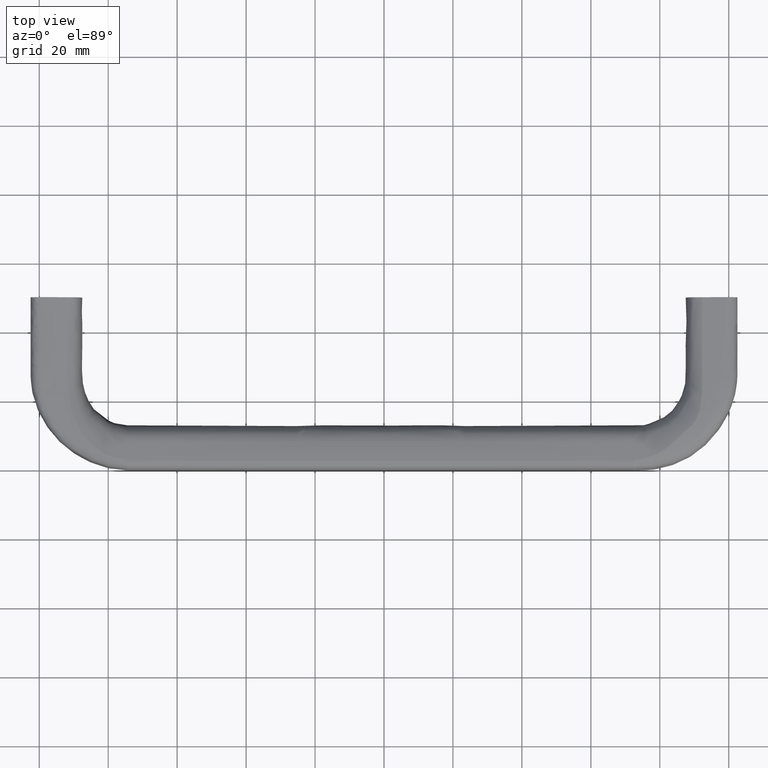
[diagram: clean part render]
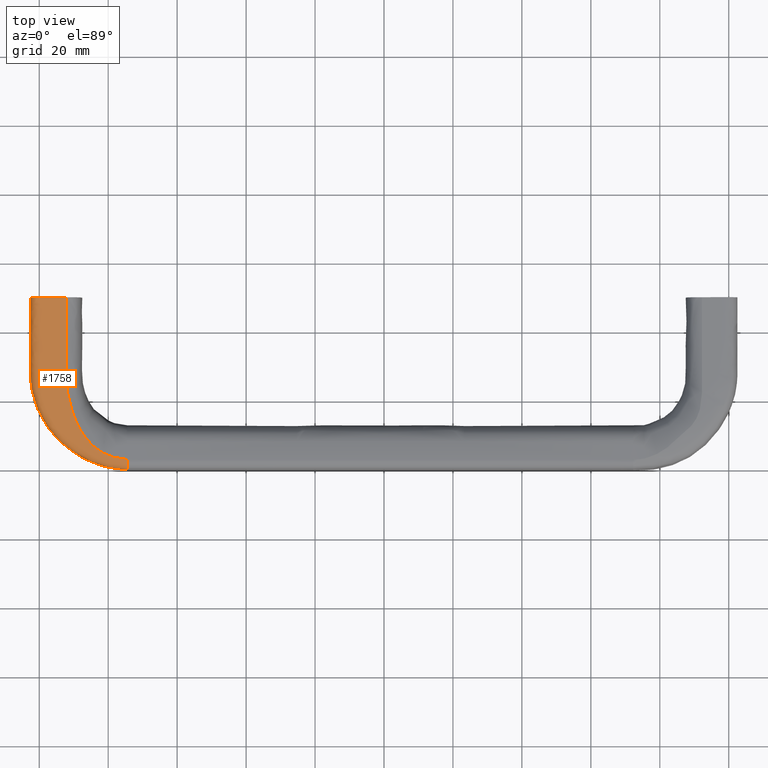
[diagram: same view with one face highlighted and labeled with its STEP entity id]
A machine part, top view. The second image highlights one B-rep face of the part: STEP entity #1758.
In plain terms, the highlighted face is a freeform B-spline surface patch.
Its self-contained STEP definition (entity closure, byte-faithful):
#463=CARTESIAN_POINT('',(-74.455555555555705,-3.932540E-010,5.477225575051659));
#464=VERTEX_POINT('',#463);
#472=CARTESIAN_POINT('',(-102.500000000000000,50.000000000000703,5.477225575051670));
#473=VERTEX_POINT('',#472);
#474=CARTESIAN_POINT('',(-74.455555555555705,-3.932540E-010,5.477225575051659));
#475=CARTESIAN_POINT('',(-89.358226491300201,0.522738654041826,5.477225575051659));
#476=CARTESIAN_POINT('',(-102.499999999827390,12.561085448286059,5.477225575051659));
#477=CARTESIAN_POINT('',(-102.499999999828200,27.999999999998700,5.477225575051659));
#478=CARTESIAN_POINT('',(-102.499999999828200,35.333333333331993,5.477225575051659));
#479=CARTESIAN_POINT('',(-102.500000000000000,42.666666666667403,5.477225575051659));
#480=CARTESIAN_POINT('',(-102.500000000000000,50.000000000000703,5.477225575051659));
#481=B_SPLINE_CURVE_WITH_KNOTS('',3,(#474,#475,#476,#477,#478,#479,#480),.UNSPECIFIED.,.F.,.U.,(4,3,4),(4.0,5.0,6.0),.UNSPECIFIED.);
#482=EDGE_CURVE('',#464,#473,#481,.T.);
#1171=CARTESIAN_POINT('',(-74.455555555555705,2.934070290343550,10.962028225664501));
#1172=VERTEX_POINT('',#1171);
#1195=CARTESIAN_POINT('',(-92.218183268673201,50.000000000000703,10.321889405628880));
#1196=VERTEX_POINT('',#1195);
#1218=CARTESIAN_POINT('',(-74.455555555555705,2.934070290343550,10.962028225664501));
#1219=CARTESIAN_POINT('',(-87.819708027216691,3.456808944778620,10.962028225664501));
#1220=CARTESIAN_POINT('',(-92.218183269763699,17.952491691506449,10.321889405738920));
#1221=CARTESIAN_POINT('',(-92.218183269764396,27.999999999998700,10.321889405738920));
#1222=CARTESIAN_POINT('',(-92.218183269764396,35.333333333332050,10.321889405738920));
#1223=CARTESIAN_POINT('',(-92.218183268673201,42.666666666667403,10.321889405628880));
#1224=CARTESIAN_POINT('',(-92.218183268673201,50.000000000000703,10.321889405628880));
#1225=B_SPLINE_CURVE_WITH_KNOTS('',3,(#1218,#1219,#1220,#1221,#1222,#1223,#1224),.UNSPECIFIED.,.F.,.U.,(4,3,4),(4.0,5.0,6.0),.UNSPECIFIED.);
#1226=EDGE_CURVE('',#1172,#1196,#1225,.T.);
#1580=CARTESIAN_POINT('',(-74.008475437476235,-0.015682159675788,5.438715734304164));
#1581=CARTESIAN_POINT('',(-74.008475437476235,-0.015682159675788,5.958411250103641));
#1582=CARTESIAN_POINT('',(-74.008475437476235,-0.015682159675788,6.478106765903122));
#1583=CARTESIAN_POINT('',(-74.008475437476235,-0.015682159675788,7.350395461640460));
#1584=CARTESIAN_POINT('',(-74.008475437478054,-0.015682159560074,7.702988641565670));
#1585=CARTESIAN_POINT('',(-74.008511003309181,-0.013421269115753,8.203459389458251));
#1586=CARTESIAN_POINT('',(-74.008280364227019,-0.028082804649858,8.557750466270759));
#1587=CARTESIAN_POINT('',(-74.008850443595165,0.008156668882874,8.906146889645004));
#1588=CARTESIAN_POINT('',(-74.011609216588283,0.183529584404756,9.609623150905080));
#1589=CARTESIAN_POINT('',(-74.016082100385930,0.467867104867830,10.071508046168420));
#1590=CARTESIAN_POINT('',(-74.030895870623254,1.409566216346828,10.861703768398300));
#1591=CARTESIAN_POINT('',(-74.041787538991088,2.101940558610443,11.065528569980080));
#1592=CARTESIAN_POINT('',(-74.054729788647123,2.924668655938685,10.963939000205180));
#1593=CARTESIAN_POINT('',(-74.056877673884031,3.061207942478890,10.935807614377429));
#1594=CARTESIAN_POINT('',(-74.059028599749411,3.197940519251385,10.912741469195510));
#1595=CARTESIAN_POINT('',(-74.157502143502725,-0.010454773248277,5.438715734304164));
#1596=CARTESIAN_POINT('',(-74.157502143502725,-0.010454773248277,5.958411250103641));
#1597=CARTESIAN_POINT('',(-74.157502143502725,-0.010454773248277,6.478106765903122));
#1598=CARTESIAN_POINT('',(-74.157502143502725,-0.010454773248277,7.350395461640460));
#1599=CARTESIAN_POINT('',(-74.157502143503933,-0.010454773132562,7.702988641565670));
#1600=CARTESIAN_POINT('',(-74.157525854058022,-0.008193882688242,8.203459389458251));
#1601=CARTESIAN_POINT('',(-74.157372094669924,-0.022855418222347,8.557750466270759));
#1602=CARTESIAN_POINT('',(-74.157752147582016,0.013384055310386,8.906146889645004));
#1603=CARTESIAN_POINT('',(-74.159591329577424,0.188756970832267,9.609623150905080));
#1604=CARTESIAN_POINT('',(-74.162573252109183,0.473094491295341,10.071508046168420));
#1605=CARTESIAN_POINT('',(-74.172449098934067,1.414793602774339,10.861703768398300));
#1606=CARTESIAN_POINT('',(-74.179710211179298,2.107167945037955,11.065528569980080));
#1607=CARTESIAN_POINT('',(-74.188338377616631,2.929896042366196,10.963939000205180));
#1608=CARTESIAN_POINT('',(-74.189770301107941,3.066435328906401,10.935807614377429));
#1609=CARTESIAN_POINT('',(-74.191204251684837,3.203167905678896,10.912741469195510));
#1610=CARTESIAN_POINT('',(-74.306528849529215,-0.005227386820765,5.438715734304164));
#1611=CARTESIAN_POINT('',(-74.306528849529201,-0.005227386820765,5.958411250103641));
#1612=CARTESIAN_POINT('',(-74.306528849529215,-0.005227386820765,6.478106765903122));
#1613=CARTESIAN_POINT('',(-74.306528849529215,-0.005227386820765,7.350395461640460));
#1614=CARTESIAN_POINT('',(-74.306528849529826,-0.005227386705051,7.702988641565670));
#1615=CARTESIAN_POINT('',(-74.306540704806864,-0.002966496260730,8.203459389458251));
#1616=CARTESIAN_POINT('',(-74.306463825112829,-0.017628031794835,8.557750466270759));
#1617=CARTESIAN_POINT('',(-74.306653851568853,0.018611441737897,8.906146889645004));
#1618=CARTESIAN_POINT('',(-74.307573442566564,0.193984357259779,9.609623150905080));
#1619=CARTESIAN_POINT('',(-74.309064403832451,0.478321877722853,10.071508046168420));
#1620=CARTESIAN_POINT('',(-74.314002327244893,1.420020989201851,10.861703768398300));
#1621=CARTESIAN_POINT('',(-74.317632883367494,2.112395331465466,11.065528569980080));
#1622=CARTESIAN_POINT('',(-74.321946966586182,2.935123428793707,10.963939000205180));
#1623=CARTESIAN_POINT('',(-74.322662928331837,3.071662715333912,10.935807614377429));
#1624=CARTESIAN_POINT('',(-74.323379903620278,3.208395292106408,10.912741469195510));
#1625=CARTESIAN_POINT('',(-89.358226491300201,0.522738654041826,5.438715734304164));
#1626=CARTESIAN_POINT('',(-89.358226491300201,0.522738654041826,5.958411250103641));
#1627=CARTESIAN_POINT('',(-89.358226491300201,0.522738654041826,6.478106765903122));
#1628=CARTESIAN_POINT('',(-89.358226491300201,0.522738654041826,7.350395461640460));
#1629=CARTESIAN_POINT('',(-89.358226491239506,0.522738654157540,7.702988641565670));
#1630=CARTESIAN_POINT('',(-89.357040963508723,0.524999544601861,8.203459389458251));
#1631=CARTESIAN_POINT('',(-89.364728933085360,0.510338009067757,8.557750466270759));
#1632=CARTESIAN_POINT('',(-89.345726287056507,0.546577482600489,8.906146889645004));
#1633=CARTESIAN_POINT('',(-89.253767185230515,0.721950398122370,9.609623150905080));
#1634=CARTESIAN_POINT('',(-89.104671055309794,1.006287918585442,10.071508046168420));
#1635=CARTESIAN_POINT('',(-88.610878703028504,1.947987030064435,10.861703768398300));
#1636=CARTESIAN_POINT('',(-88.247823082652488,2.640361372328058,11.065528569980080));
#1637=CARTESIAN_POINT('',(-87.816414751142545,3.463089469656291,10.963939000205180));
#1638=CARTESIAN_POINT('',(-87.744818574977813,3.599628756196481,10.935807614377429));
#1639=CARTESIAN_POINT('',(-87.673121044529879,3.736361332968964,10.912741469195510));
#1640=CARTESIAN_POINT('',(-102.499999999827390,12.561085448286059,5.400671356378402));
#1641=CARTESIAN_POINT('',(-102.499999999827390,12.561085448286059,6.433780904166188));
#1642=CARTESIAN_POINT('',(-102.499999999827390,12.561085448286059,7.466890451953974));
#1643=CARTESIAN_POINT('',(-102.499999999827390,12.561085448286100,9.200924617338838));
#1644=CARTESIAN_POINT('',(-102.205751354328000,12.715378607370161,9.869655533687041));
#1645=CARTESIAN_POINT('',(-101.471856008388600,13.100206313781101,10.542146717723311));
#1646=CARTESIAN_POINT('',(-100.881531777884900,13.409750611779989,10.915399608141859));
#1647=CARTESIAN_POINT('',(-100.187000400662800,13.773937301892801,11.025910008607420));
#1648=CARTESIAN_POINT('',(-98.723575700613608,14.541303349301360,10.897876937552860));
#1649=CARTESIAN_POINT('',(-97.665040757786997,15.096360111083049,10.805267130193160));
#1650=CARTESIAN_POINT('',(-95.230575743451098,16.372903957543048,10.592279039838299));
#1651=CARTESIAN_POINT('',(-93.854579605477170,17.094425685043610,10.472127108807721));
#1652=CARTESIAN_POINT('',(-92.204290564440328,17.959776514819509,10.325867422205519));
#1653=CARTESIAN_POINT('',(-91.935827208664492,18.100548817069662,10.280253803922010));
#1654=CARTESIAN_POINT('',(-91.664520717870587,18.242811954674039,10.244263158122740));
#1655=CARTESIAN_POINT('',(-102.499999999828200,27.999999999998700,5.400671356378402));
#1656=CARTESIAN_POINT('',(-102.499999999828200,27.999999999998689,6.433780904166188));
#1657=CARTESIAN_POINT('',(-102.499999999828200,27.999999999998700,7.466890451953974));
#1658=CARTESIAN_POINT('',(-102.499999999828200,27.999999999998700,9.200924617338838));
#1659=CARTESIAN_POINT('',(-102.205751354328600,27.999999999998700,9.869655533687041));
#1660=CARTESIAN_POINT('',(-101.471856008389200,27.999999999998700,10.542146717723311));
#1661=CARTESIAN_POINT('',(-100.881531777885800,27.999999999998700,10.915399608141859));
#1662=CARTESIAN_POINT('',(-100.187000400663610,27.999999999998700,11.025910008607420));
#1663=CARTESIAN_POINT('',(-98.723575700614290,27.999999999998700,10.897876937552860));
#1664=CARTESIAN_POINT('',(-97.665040757787708,27.999999999998700,10.805267130193160));
#1665=CARTESIAN_POINT('',(-95.230575743451894,27.999999999998700,10.592279039838299));
#1666=CARTESIAN_POINT('',(-93.854579605477852,27.999999999998700,10.472127108807721));
#1667=CARTESIAN_POINT('',(-92.204290564441052,27.999999999998700,10.325867422205519));
#1668=CARTESIAN_POINT('',(-91.935827208665145,27.999999999998700,10.280253803922010));
#1669=CARTESIAN_POINT('',(-91.664520717871198,27.999999999998700,10.244263158122740));
#1670=CARTESIAN_POINT('',(-102.499999999828200,35.406666665026201,5.400671356378402));
#1671=CARTESIAN_POINT('',(-102.499999999828200,35.406666665026201,6.433780904166188));
#1672=CARTESIAN_POINT('',(-102.499999999828200,35.406666665026201,7.466890451953974));
#1673=CARTESIAN_POINT('',(-102.499999999828010,35.406666665026201,9.200924617338838));
#1674=CARTESIAN_POINT('',(-102.205751354328600,35.406666665026201,9.869655533687041));
#1675=CARTESIAN_POINT('',(-101.471856008389200,35.406666665026201,10.542146717723311));
#1676=CARTESIAN_POINT('',(-100.881531777885900,35.406666665026201,10.915399608141859));
#1677=CARTESIAN_POINT('',(-100.187000400663390,35.406666665026201,11.025910008607420));
#1678=CARTESIAN_POINT('',(-98.723575700614290,35.406666665026201,10.897876937552860));
#1679=CARTESIAN_POINT('',(-97.665040757787708,35.406666665026201,10.805267130193160));
#1680=CARTESIAN_POINT('',(-95.230575743451894,35.406666665026201,10.592279039838299));
#1681=CARTESIAN_POINT('',(-93.854579605477852,35.406666665026201,10.472127108807721));
#1682=CARTESIAN_POINT('',(-92.204290564441010,35.406666665026272,10.325867422205519));
#1683=CARTESIAN_POINT('',(-91.935827208665174,35.406666665026272,10.280253803922010));
#1684=CARTESIAN_POINT('',(-91.664520717871198,35.406666665026258,10.244263158122740));
#1685=CARTESIAN_POINT('',(-102.500000000003500,42.813333330055862,5.400671356371730));
#1686=CARTESIAN_POINT('',(-102.500000000003400,42.813333330055841,6.433780904249550));
#1687=CARTESIAN_POINT('',(-102.500000000003500,42.813333330055841,7.466890452127369));
#1688=CARTESIAN_POINT('',(-102.500000000003500,42.813333330055862,9.200924617663365));
#1689=CARTESIAN_POINT('',(-102.205751354452500,42.813333330055862,9.869655534067006));
#1690=CARTESIAN_POINT('',(-101.471856008384710,42.813333330055862,10.542146718133440));
#1691=CARTESIAN_POINT('',(-100.881531777775190,42.813333330055862,10.915399608555330));
#1692=CARTESIAN_POINT('',(-100.187000400437600,42.813333330055862,11.025910008979160));
#1693=CARTESIAN_POINT('',(-98.723575700162272,42.813333330055862,10.897876937778790));
#1694=CARTESIAN_POINT('',(-97.665040757200032,42.813333330055862,10.805267130321839));
#1695=CARTESIAN_POINT('',(-95.230575742602340,42.813333330055862,10.592279039791070));
#1696=CARTESIAN_POINT('',(-93.854579604508558,42.813333330055862,10.472127108703649));
#1697=CARTESIAN_POINT('',(-92.204290563326509,42.813333330055848,10.325867422093619));
#1698=CARTESIAN_POINT('',(-91.935827207527751,42.813333330055862,10.280253803807121));
#1699=CARTESIAN_POINT('',(-91.664520716710371,42.813333330055862,10.244263158005641));
#1700=CARTESIAN_POINT('',(-102.500000000000000,50.219999995083320,5.400671356371862));
#1701=CARTESIAN_POINT('',(-102.500000000000000,50.219999995083313,6.433780904247908));
#1702=CARTESIAN_POINT('',(-102.500000000000000,50.219999995083327,7.466890452123954));
#1703=CARTESIAN_POINT('',(-102.500000000000000,50.219999995083320,9.200924617656970));
#1704=CARTESIAN_POINT('',(-102.205751354450000,50.219999995083320,9.869655534059520));
#1705=CARTESIAN_POINT('',(-101.471856008384800,50.219999995083320,10.542146718125361));
#1706=CARTESIAN_POINT('',(-100.881531777777400,50.219999995083327,10.915399608547180));
#1707=CARTESIAN_POINT('',(-100.187000400442000,50.219999995083320,11.025910008971840));
#1708=CARTESIAN_POINT('',(-98.723575700171295,50.219999995083320,10.897876937774340));
#1709=CARTESIAN_POINT('',(-97.665040757211599,50.219999995083320,10.805267130319301));
#1710=CARTESIAN_POINT('',(-95.230575742619109,50.219999995083320,10.592279039792000));
#1711=CARTESIAN_POINT('',(-93.854579604527657,50.219999995083320,10.472127108705701));
#1712=CARTESIAN_POINT('',(-92.204290563348479,50.219999995083313,10.325867422095820));
#1713=CARTESIAN_POINT('',(-91.935827207550176,50.219999995083313,10.280253803809391));
#1714=CARTESIAN_POINT('',(-91.664520716733250,50.219999995083320,10.244263158007950));
#1715=B_SPLINE_SURFACE_WITH_KNOTS('',3,3,((#1580,#1595,#1610,#1625,#1640,#1655,#1670,#1685,#1700),(#1581,#1596,#1611,#1626,#1641,#1656,#1671,#1686,#1701),(#1582,#1597,#1612,#1627,#1642,#1657,#1672,#1687,#1702),(#1583,#1598,#1613,#1628,#1643,#1658,#1673,#1688,#1703),(#1584,#1599,#1614,#1629,#1644,#1659,#1674,#1689,#1704),(#1585,#1600,#1615,#1630,#1645,#1660,#1675,#1690,#1705),(#1586,#1601,#1616,#1631,#1646,#1661,#1676,#1691,#1706),(#1587,#1602,#1617,#1632,#1647,#1662,#1677,#1692,#1707),(#1588,#1603,#1618,#1633,#1648,#1663,#1678,#1693,#1708),(#1589,#1604,#1619,#1634,#1649,#1664,#1679,#1694,#1709),(#1590,#1605,#1620,#1635,#1650,#1665,#1680,#1695,#1710),(#1591,#1606,#1621,#1636,#1651,#1666,#1681,#1696,#1711),(#1592,#1607,#1622,#1637,#1652,#1667,#1682,#1697,#1712),(#1593,#1608,#1623,#1638,#1653,#1668,#1683,#1698,#1713),(#1594,#1609,#1624,#1639,#1654,#1669,#1684,#1699,#1714)),.UNSPECIFIED.,.F.,.F.,.U.,(4,2,2,1,2,2,2,4),(4,2,3,4),(0.0,3.099328643628152,5.202102496599062,6.085567238349281,7.304876349569972,10.492611472997250,14.636169175929700,15.463952515542770),(0.0,0.447355073852656,45.182863459018932,90.365726918037723),.UNSPECIFIED.);
#1716=CARTESIAN_POINT('',(-74.455555555555705,-3.932540E-010,5.477225575051659));
#1717=CARTESIAN_POINT('',(-74.455555555555705,-3.932540E-010,5.984084477268639));
#1718=CARTESIAN_POINT('',(-74.455555555555705,-3.932540E-010,6.490943379485620));
#1719=CARTESIAN_POINT('',(-74.455555555555705,-3.932540E-010,7.350395461640460));
#1720=CARTESIAN_POINT('',(-74.455555555555705,-2.775393E-010,7.702988641565670));
#1721=CARTESIAN_POINT('',(-74.455555555555705,1.106754E-011,8.203721214595930));
#1722=CARTESIAN_POINT('',(-74.455555555555705,1.086032E-010,8.351860607761180));
#1723=CARTESIAN_POINT('',(-74.455555555555705,3.579680E-010,8.704453787526779));
#1724=CARTESIAN_POINT('',(-74.455555555555705,0.025025772272350,8.906009434137300));
#1725=CARTESIAN_POINT('',(-74.455555555555705,0.199211743687290,9.609623150905080));
#1726=CARTESIAN_POINT('',(-74.455555555555705,0.483549264150364,10.071508046168420));
#1727=CARTESIAN_POINT('',(-74.455555555555705,1.425248375629362,10.861703768398300));
#1728=CARTESIAN_POINT('',(-74.455555555555705,2.117618639061655,11.065409859717420));
#1729=CARTESIAN_POINT('',(-74.455555555555705,2.846979921854735,10.976196125237720));
#1730=CARTESIAN_POINT('',(-74.455555555555705,2.890559920052480,10.969699363937700));
#1731=CARTESIAN_POINT('',(-74.455555555555705,2.934070290343550,10.962028225664501));
#1732=B_SPLINE_CURVE_WITH_KNOTS('',3,(#1716,#1717,#1718,#1719,#1720,#1721,#1722,#1723,#1724,#1725,#1726,#1727,#1728,#1729,#1730,#1731),.UNSPECIFIED.,.F.,.U.,(4,2,2,2,2,2,2,4),(0.0,0.051436715951470,0.087218341101117,0.102251723876718,0.122999966250764,0.177243718189037,0.247752122268148,0.252235712501356),.UNSPECIFIED.);
#1733=EDGE_CURVE('',#464,#1172,#1732,.T.);
#1734=ORIENTED_EDGE('',*,*,#1733,.T.);
#1735=ORIENTED_EDGE('',*,*,#1226,.T.);
#1736=CARTESIAN_POINT('',(-102.500000000000000,50.000000000000703,5.477225575051659));
#1737=CARTESIAN_POINT('',(-102.500000000000000,50.000000000000703,6.484817050034440));
#1738=CARTESIAN_POINT('',(-102.500000000000000,50.000000000000703,7.492408525017221));
#1739=CARTESIAN_POINT('',(-102.500000000000000,50.000000000000703,9.200924617656970));
#1740=CARTESIAN_POINT('',(-102.205751354450000,50.000000000000703,9.869655534059520));
#1741=CARTESIAN_POINT('',(-101.471856008384800,50.000000000000703,10.542146718125361));
#1742=CARTESIAN_POINT('',(-101.223835688365200,50.000000000000703,10.698966134525341));
#1743=CARTESIAN_POINT('',(-100.589729602736990,50.000000000000703,10.961829728568860));
#1744=CARTESIAN_POINT('',(-100.187000400442000,50.000000000000703,11.025910008971840));
#1745=CARTESIAN_POINT('',(-98.723575700171295,50.000000000000703,10.897876937774340));
#1746=CARTESIAN_POINT('',(-97.665040757211599,50.000000000000703,10.805267130319301));
#1747=CARTESIAN_POINT('',(-95.230575742619109,50.000000000000703,10.592279039792000));
#1748=CARTESIAN_POINT('',(-93.854645670986301,50.000000000000703,10.471900756719700));
#1749=CARTESIAN_POINT('',(-92.391220970715608,50.000000000000703,10.343867685522200));
#1750=CARTESIAN_POINT('',(-92.304356965156884,50.000000000000703,10.333971387114200));
#1751=CARTESIAN_POINT('',(-92.218183268673201,50.000000000000703,10.321889405628880));
#1752=B_SPLINE_CURVE_WITH_KNOTS('',3,(#1736,#1737,#1738,#1739,#1740,#1741,#1742,#1743,#1744,#1745,#1746,#1747,#1748,#1749,#1750,#1751),.UNSPECIFIED.,.F.,.U.,(4,2,2,2,2,2,2,4),(0.0,0.051436715951470,0.087218341101117,0.102251723876718,0.122999966250764,0.177243718189037,0.247752122268148,0.252235712501356),.UNSPECIFIED.);
#1753=EDGE_CURVE('',#473,#1196,#1752,.T.);
#1754=ORIENTED_EDGE('',*,*,#1753,.F.);
#1755=ORIENTED_EDGE('',*,*,#482,.F.);
#1756=EDGE_LOOP('',(#1734,#1735,#1754,#1755));
#1757=FACE_OUTER_BOUND('',#1756,.T.);
#1758=ADVANCED_FACE('',(#1757),#1715,.T.);